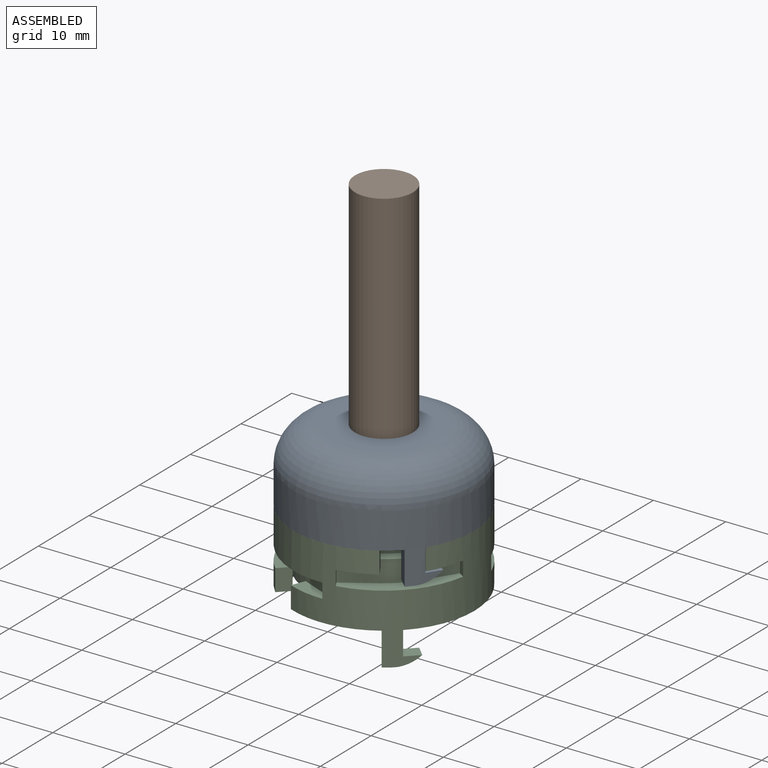
[diagram: assembled view]
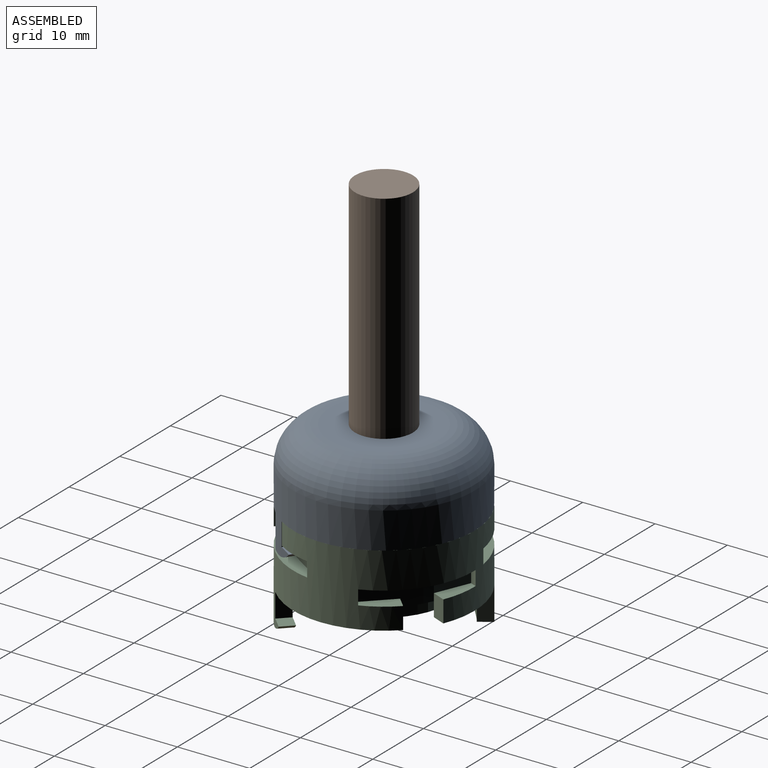
[diagram: assembled view, second angle]
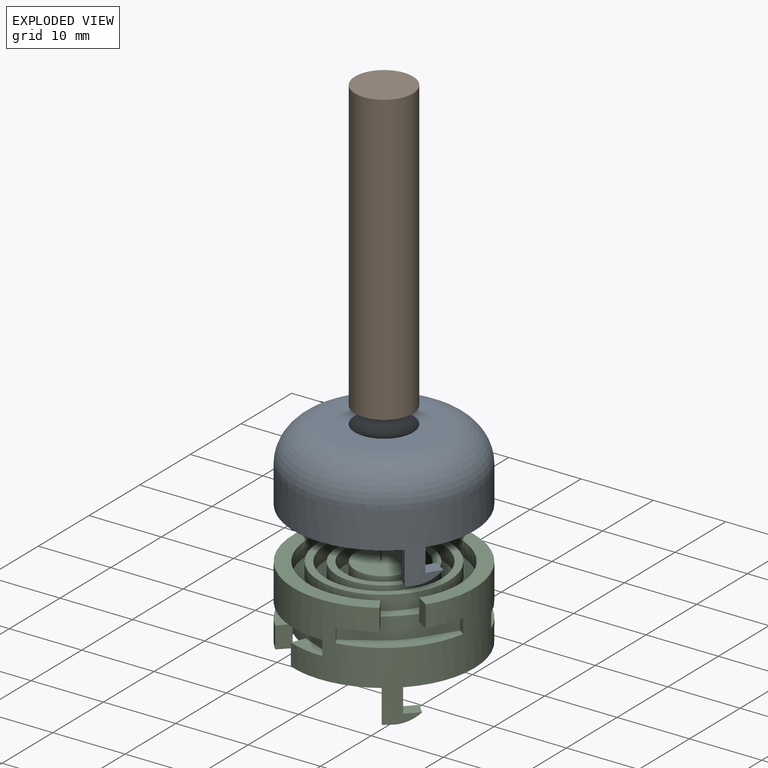
[diagram: exploded view]
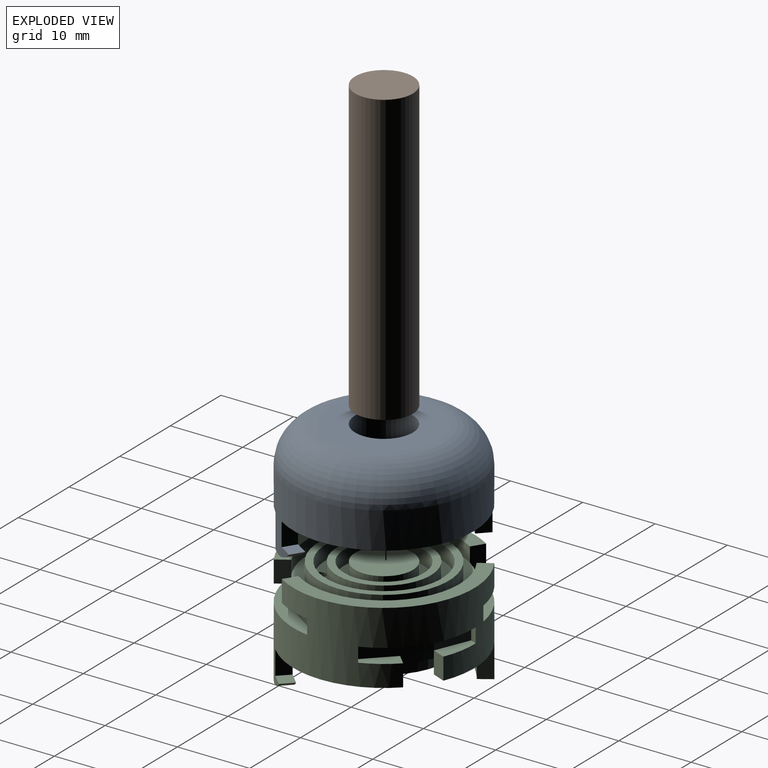
[diagram: exploded view, second angle]
ASSEMBLY  parts=3 mates=2
PART A: 52 faces, bbox 27.1x27.1x14.6 mm
  f0: cylinder r=4mm len=10mm, axis (0,0,-1), area 237.5mm2, adj f1,f2,f3,f17,f22,f41,f42,f43
  f1: plane 6.37x3.4mm, normal (0,0,-1), area 2mm2, adj f0,f10,f42,f49
  f2: plane 4.43x0.8mm, normal (0,0,-1), area 1.1mm2, adj f0,f11,f43,f50
  f3: plane 11x8.62mm, normal (0,0,-1), area 26.6mm2, adj f0,f8,f10,f18,f41,f42,f44,f49
  f4: plane 6.23x1.87mm, normal (0,0,-1), area 7.1mm2, adj f9,f11,f43,f50
  f5: cylinder r=6.5mm len=13mm, axis (0,0,-1), area 28.6mm2, adj f7,f16,f44,f49
  f6: cylinder r=6.5mm len=7.67mm, axis (0,0,-1), area 8.2mm2, adj f7,f25,f43,f50
  f7: plane 16x16mm, normal (0,0,-1), area 62.4mm2, adj f5,f6,f15,f43,f44,f46,f47,f49
  f8: cylinder r=5.5mm len=11mm, axis (0,0,-1), area 23.9mm2, adj f3,f16,f44,f49
  f9: cylinder r=5.5mm len=6.23mm, axis (0,0,-1), area 6.6mm2, adj f4,f25,f43,f50
  f10: cylinder r=4.25mm len=6.37mm, axis (0,0,1), area 8.1mm2, adj f1,f3,f42,f49
  f11: cylinder r=4.25mm len=4.43mm, axis (0,0,1), area 4.7mm2, adj f2,f4,f43,f50
  f12: cylinder r=9mm len=18mm, axis (0,0,-1), area 54.5mm2, adj f13,f24,f49,f50
  f13: plane 21x21mm, normal (0,0,-1), area 88.9mm2, adj f12,f21,f49,f50
  f14: plane 1.41x1.41mm, normal (0,0,-1), area 0.1mm2, adj f21,f48
  f15: cylinder r=8mm len=16mm, axis (0,0,-1), area 48.3mm2, adj f7,f24,f49,f50
  f16: plane 13x10.33mm, normal (0,0,-1), area 26.3mm2, adj f5,f8,f44,f49
  f17: plane 6.37x3.4mm, normal (0,0,-1), area 2mm2, adj f0,f18,f41,f44
  f18: cylinder r=4.25mm len=6.37mm, axis (0,0,1), area 8.1mm2, adj f3,f17,f41,f44
  f19: cylinder r=12.5mm len=25mm, axis (0,0,-1), area 415.1mm2, adj f20,f23,f26,f27,f28,f29,f30,f31
  f20: plane 21.34x19.44mm, normal (0,0,-1), area 67.7mm2, adj f19,f21,f27,f29
  f21: cylinder r=10.5mm len=21mm, axis (0,0,-1), area 84.9mm2, adj f13,f14,f20,f23,f26,f27,f28,f29
  f22: plane 15x15mm, normal (0,0,1), area 126.4mm2, adj f0,f40
  f23: plane 21.34x19.44mm, normal (0,0,-1), area 67.7mm2, adj f19,f21,f26,f30
  f24: plane 18x18mm, normal (0,0,-1), area 51.4mm2, adj f12,f15,f49,f50
  f25: plane 7.67x1.97mm, normal (0,0,-1), area 7.4mm2, adj f6,f9,f43,f50
  f26: plane 4.6x1.66mm, normal (0.83,0.56,0), area 9.2mm2, adj f19,f21,f23,f28
  f27: plane 3.2x1.43mm, normal (-0.71,-0.7,0), area 6.4mm2, adj f19,f20,f21,f32
  f28: plane 2.14x2.06mm, normal (0,0,-1), area 2mm2, adj f19,f21,f26,f39
  f29: plane 4.6x1.66mm, normal (-0.83,-0.56,0), area 9.2mm2, adj f19,f20,f21,f31
  f30: plane 3.2x1.41mm, normal (0.71,0.71,0), area 6.4mm2, adj f19,f21,f23,f35
  f31: plane 2.13x2.06mm, normal (0,0,-1), area 2mm2, adj f19,f21,f29,f38
  f32: plane 2.97x2.97mm, normal (0,0,1), area 4.4mm2, adj f27,f33,f34,f39
  f33: plane 1.57x1.54mm, normal (-0.7,0.71,0), area 1.6mm2, adj f19,f32,f39
  f34: plane 1.57x1.54mm, normal (0.7,-0.71,0), area 1.6mm2, adj f21,f32,f39
  f35: plane 2.97x2.97mm, normal (0,0,1), area 4.4mm2, adj f30,f36,f37,f38
  f36: plane 1.56x1.56mm, normal (0.71,-0.71,0), area 1.6mm2, adj f19,f35,f38
  f37: plane 1.56x1.56mm, normal (-0.71,0.71,0), area 1.6mm2, adj f21,f35,f38
  f38: cylinder r=5mm len=3.92mm, axis (0.71,-0.71,0), area 7.7mm2, adj f19,f21,f31,f35,f36,f37
  f39: cylinder r=5mm len=3.92mm, axis (-0.7,0.71,0), area 7.7mm2, adj f19,f21,f28,f32,f33,f34
  f40: torus R=7.5mm, axis (0,0,1), area 527.2mm2, adj f19,f22
  f41: plane 1x0.24mm, normal (0.98,-0.21,0), area 0.3mm2, adj f0,f3,f17,f18
  f42: plane 1x0.24mm, normal (-0.98,-0.21,0), area 0.3mm2, adj f0,f1,f3,f10
  f43: plane 3x2.58mm, normal (-0.71,-0.71,0), area 8.6mm2, adj f0,f2,f4,f6,f7,f9,f11,f25
  f44: plane 3x2.87mm, normal (0.71,0.71,0), area 9.4mm2, adj f0,f3,f5,f7,f8,f16,f17,f18
  f45: plane 4.28x4.28mm, normal (0,0,-1), area 7.9mm2, adj f0,f43,f44,f46,f47
  f46: plane 2x1.41mm, normal (0.71,-0.71,0), area 4mm2, adj f7,f44,f45,f47
  f47: plane 2x0.29mm, normal (-0.7,-0.71,0), area 0.8mm2, adj f7,f43,f45,f46
  f48: plane 2x1.41mm, normal (-0.71,-0.71,0), area 4mm2, adj f14,f49,f50,f51
  f49: plane 4.65x4.65mm, normal (-0.71,0.71,0), area 15.4mm2, adj f0,f1,f3,f5,f7,f8,f10,f12
  f50: plane 4.65x4.65mm, normal (0.71,-0.71,0), area 15.4mm2, adj f0,f2,f4,f6,f7,f9,f11,f12
  f51: plane 6.07x6.07mm, normal (0,0,-1), area 13mm2, adj f0,f48,f49,f50
PART B: 3 faces, bbox 8x8x40 mm
  f0: cylinder r=4mm len=40mm, axis (0,0,-1), area 1005.3mm2, adj f1,f2
  f1: plane 8x8mm, normal (0,0,1), area 50.3mm2, adj f0
  f2: plane 8x8mm, normal (0,0,-1), area 50.3mm2, adj f0
PART C: 91 faces, bbox 25x25x14.6 mm
  f0: plane 2x0.88mm, normal (-0.92,0.38,0), area 1.9mm2, adj f1,f9,f36,f90
  f1: plane 4.62x2mm, normal (-0.38,-0.92,0), area 10mm2, adj f0,f34,f36,f90
  f2: plane 3.54x3.54mm, normal (-0.71,-0.71,0), area 10mm2, adj f34,f36,f51,f89
  f3: plane 3.54x3.54mm, normal (0.71,0.71,0), area 10mm2, adj f37,f38,f52,f88
  f4: plane 2x0.88mm, normal (0.92,-0.38,0), area 1.9mm2, adj f5,f9,f38,f87
  f5: plane 4.62x2mm, normal (0.38,0.92,0), area 10mm2, adj f4,f37,f38,f87
  f6: plane 11x11mm, normal (0,0,1), area 43mm2, adj f30,f81,f83
  f7: plane 19.26x19.26mm, normal (0,0,1), area 62.4mm2, adj f9,f10,f11,f58,f72
  f8: plane 3x1.68mm, normal (-0.84,-0.54,0), area 6mm2, adj f9,f13,f57,f70,f73
  f9: cylinder r=12.5mm len=25mm, axis (0,0,-1), area 607.5mm2, adj f0,f4,f7,f8,f10,f11,f12,f13
  f10: cylinder r=12.5mm len=4.77mm, axis (0,0,-1), area 15.4mm2, adj f7,f9,f58,f67
  f11: plane 3x1.68mm, normal (0.84,0.54,0), area 6mm2, adj f7,f9,f55,f64,f72
  f12: plane 3x1.68mm, normal (-0.54,-0.84,0), area 6mm2, adj f9,f13,f55,f61,f73
  f13: plane 19.26x19.26mm, normal (0,0,1), area 62.4mm2, adj f8,f9,f12,f73
  f14: plane 3x1.41mm, normal (-0.71,0.71,0), area 6mm2, adj f9,f17,f20,f37,f88
  f15: plane 3x1.85mm, normal (-0.92,0.38,0), area 6mm2, adj f9,f19,f20,f34,f90
  f16: plane 3x1.85mm, normal (0.92,-0.38,0), area 6mm2, adj f9,f21,f22,f37,f87
  f17: plane 17.68x5.08mm, normal (0,0,-1), area 36.1mm2, adj f9,f14,f20,f43
  f18: plane 17.68x5.08mm, normal (0,0,-1), area 36.1mm2, adj f9,f21,f35,f40
  f19: plane 11.73x3.77mm, normal (0,0,-1), area 22.6mm2, adj f9,f15,f20,f42
  f20: cylinder r=10.5mm len=17.92mm, axis (0,0,-1), area 67.1mm2, adj f14,f15,f17,f19,f24,f42,f43,f44
  f21: cylinder r=10.5mm len=17.92mm, axis (0,0,-1), area 67.2mm2, adj f16,f18,f22,f24,f35,f39,f40,f41
  f22: plane 11.73x3.77mm, normal (0,0,-1), area 22.6mm2, adj f9,f16,f21,f39
  f23: cylinder r=9mm len=18mm, axis (0,0,-1), area 113.1mm2, adj f24,f25
  f24: plane 21x21mm, normal (0,0,-1), area 90.1mm2, adj f20,f21,f23,f34,f37,f86
  f25: plane 18x18mm, normal (0,0,-1), area 53.4mm2, adj f23,f27
  f26: cylinder r=6.5mm len=13mm, axis (0,0,-1), area 81.7mm2, adj f28,f29,f85
  f27: cylinder r=8mm len=16mm, axis (0,0,-1), area 100.5mm2, adj f25,f28
  f28: plane 16x16mm, normal (0,0,-1), area 66.6mm2, adj f26,f27,f84
  f29: plane 13x13mm, normal (0,0,-1), area 37.7mm2, adj f26,f31
  f30: cylinder r=4mm len=10mm, axis (0,0,-1), area 100.7mm2, adj f6,f32,f33,f82,f83
  f31: cylinder r=5.5mm len=11mm, axis (0,0,-1), area 69.1mm2, adj f29,f32
  f32: plane 11x11mm, normal (0,0,-1), area 43mm2, adj f30,f31,f83
  f33: plane 8x8mm, normal (0,0,-1), area 50.3mm2, adj f30
  f34: cylinder r=10.5mm len=3.41mm, axis (0,0,-1), area 12.4mm2, adj f1,f2,f15,f24,f35,f36
  f35: plane 3x1.41mm, normal (0.71,-0.71,0), area 6mm2, adj f9,f18,f21,f34,f89
  f36: plane 12.24x8.61mm, normal (0,0,-1), area 25.6mm2, adj f0,f1,f2,f9,f34,f51
  f37: cylinder r=10.5mm len=3.41mm, axis (0,0,-1), area 12.4mm2, adj f3,f5,f14,f16,f24,f38
  f38: plane 12.24x8.61mm, normal (0,0,-1), area 25.6mm2, adj f3,f4,f5,f9,f37,f52
  f39: plane 4.6x1.66mm, normal (0.83,0.56,0), area 9.2mm2, adj f9,f21,f22,f41
  f40: plane 3.3x1.43mm, normal (-0.71,-0.7,0), area 6.6mm2, adj f9,f18,f21,f45
  f41: plane 2.21x2.15mm, normal (0,0,-1), area 2.2mm2, adj f9,f21,f39,f54
  f42: plane 4.6x1.66mm, normal (-0.83,-0.56,0), area 9.2mm2, adj f9,f19,f20,f44
  f43: plane 3.3x1.41mm, normal (0.71,0.71,0), area 6.6mm2, adj f9,f17,f20,f48
  f44: plane 2.19x2.14mm, normal (0,0,-1), area 2.2mm2, adj f9,f20,f42,f53
  f45: plane 2.97x2.97mm, normal (0,0,1), area 4.4mm2, adj f40,f46,f47,f54
  f46: plane 1.57x1.54mm, normal (-0.7,0.71,0), area 1.5mm2, adj f9,f45,f54
  f47: plane 1.57x1.54mm, normal (0.7,-0.71,0), area 1.5mm2, adj f21,f45,f54
  f48: plane 2.97x2.97mm, normal (0,0,1), area 4.4mm2, adj f43,f49,f50,f53
  f49: plane 1.56x1.56mm, normal (0.71,-0.71,0), area 1.5mm2, adj f9,f48,f53
  f50: plane 1.56x1.56mm, normal (-0.71,0.71,0), area 1.5mm2, adj f20,f48,f53
  f51: plane 2x0.68mm, normal (0.71,-0.71,0), area 1.9mm2, adj f2,f9,f36,f89
  f52: plane 2x0.68mm, normal (-0.71,0.71,0), area 1.9mm2, adj f3,f9,f38,f88
  f53: cylinder r=5mm len=3.84mm, axis (0.71,-0.71,0), area 7.4mm2, adj f9,f20,f44,f48,f49,f50
  f54: cylinder r=5mm len=3.84mm, axis (-0.7,0.71,0), area 7.4mm2, adj f9,f21,f41,f45,f46,f47
  f55: cylinder r=10.5mm len=3.15mm, axis (0,0,1), area 13.5mm2, adj f11,f12,f56,f62,f65,f75
  f56: plane 10.87x10.87mm, normal (0,0,1), area 26.4mm2, adj f9,f55,f60,f62,f63,f65
  f57: cylinder r=10.5mm len=3.15mm, axis (0,0,1), area 13.5mm2, adj f8,f58,f59,f68,f71,f75
  f58: plane 3x1.68mm, normal (0.54,0.84,0), area 6mm2, adj f7,f10,f57,f67,f72
  f59: plane 10.87x10.87mm, normal (0,0,1), area 26.4mm2, adj f9,f57,f66,f68,f69,f71
  f60: plane 2x0.8mm, normal (-0.54,-0.84,0), area 1.9mm2, adj f9,f56,f61,f62
  f61: plane 5.29x3.51mm, normal (0,0,-1), area 8.3mm2, adj f9,f12,f60,f62
  f62: plane 4.21x2.71mm, normal (0.84,-0.54,0), area 10mm2, adj f55,f56,f60,f61
  f63: plane 2x0.8mm, normal (0.84,0.54,0), area 1.9mm2, adj f9,f56,f64,f65
  f64: plane 5.29x3.51mm, normal (0,0,-1), area 8.3mm2, adj f9,f11,f63,f65
  f65: plane 4.21x2.71mm, normal (0.54,-0.84,0), area 10mm2, adj f55,f56,f63,f64
  f66: plane 2x0.8mm, normal (0.54,0.84,0), area 1.9mm2, adj f9,f59,f67,f68
  f67: plane 5.29x3.51mm, normal (0,0,-1), area 8.3mm2, adj f10,f58,f66,f68
  f68: plane 4.21x2.71mm, normal (-0.84,0.54,0), area 10mm2, adj f57,f59,f66,f67
  f69: plane 2x0.8mm, normal (-0.84,-0.54,0), area 1.9mm2, adj f9,f59,f70,f71
  f70: plane 5.29x3.51mm, normal (0,0,-1), area 8.3mm2, adj f8,f9,f69,f71
  f71: plane 4.21x2.71mm, normal (-0.54,0.84,0), area 10mm2, adj f57,f59,f69,f70
  f72: cylinder r=10.5mm len=16.18mm, axis (0,0,1), area 57mm2, adj f7,f11,f58,f75
  f73: cylinder r=10.5mm len=16.18mm, axis (0,0,1), area 57mm2, adj f8,f12,f13,f75
  f74: cylinder r=9mm len=18mm, axis (0,0,1), area 113.1mm2, adj f75,f76
  f75: plane 21x21mm, normal (0,0,1), area 90.1mm2, adj f55,f57,f72,f73,f74,f86
  f76: plane 18x18mm, normal (0,0,1), area 53.4mm2, adj f74,f78
  f77: cylinder r=6.5mm len=13mm, axis (0,0,1), area 81.3mm2, adj f79,f80,f84
  f78: cylinder r=8mm len=16mm, axis (0,0,1), area 100.5mm2, adj f76,f79
  f79: plane 16x16mm, normal (0,0,1), area 66.6mm2, adj f77,f78,f84
  f80: plane 13x13mm, normal (0,0,1), area 37.7mm2, adj f77,f81,f84
  f81: cylinder r=5.5mm len=11mm, axis (0,0,1), area 69.1mm2, adj f6,f80
  f82: plane 8x8mm, normal (0,0,1), area 50.3mm2, adj f30
  f83: cylinder r=0.75mm len=6mm, axis (0,0,-1), area 28.1mm2, adj f6,f30,f32
  f84: cylinder r=0.75mm len=8mm, axis (0,0,-1), area 28.7mm2, adj f28,f77,f79,f80,f85
  f85: plane 0.18x0.1mm, normal (0,0,1), area 0mm2, adj f26,f84
  f86: cylinder r=0.75mm len=6mm, axis (0,0,-1), area 28.2mm2, adj f24,f75
  f87: plane 5.38x2.8mm, normal (0,0,1), area 8.3mm2, adj f4,f5,f9,f16
  f88: plane 4.95x4.21mm, normal (0,0,1), area 8.3mm2, adj f3,f9,f14,f52
  f89: plane 4.95x4.21mm, normal (0,0,1), area 8.3mm2, adj f2,f9,f35,f51
  f90: plane 5.38x2.8mm, normal (0,0,1), area 8.3mm2, adj f0,f1,f9,f15
PLACE A rot(axis=(0,0,1),12deg) t=(-25.64,-9.39,13.32)mm fixed
PLACE B rot(axis=(0,0,1),12deg) t=(-25.64,-9.39,13.32)mm
PLACE C rot(axis=(0,0,1),0deg) t=(-25.64,-9.39,3.32)mm
MATE fastened B.f0 <-> A.f0  axis (0,0,-1) through (-25.64,-9.39,13.32)mm
MATE cylindrical A.f0 <-> C.f9  axis (0,0,-1) through (-25.64,-9.39,13.32)mm
